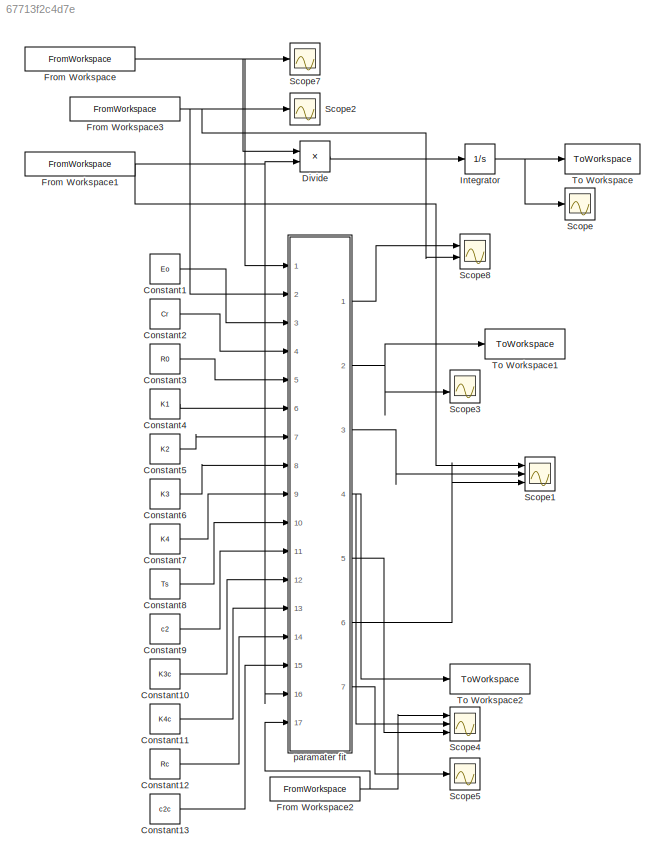
MODEL slx_67713f2c4d7e
KIND model
CONFIG AbsTol = auto
CONFIG EnableMultiTasking = off
CONFIG FixedStep = auto
CONFIG MaxStep = auto
CONFIG MinStep = auto
CONFIG RelTol = 1e-3
CONFIG SampleTimeConstraint = Unconstrained
CONFIG SolverName = VariableStepAuto
CONFIG StartTime = 0.0
CONFIG StopTime = tmax
BLOCK [Constant] Constant1
  Value = Eo
BLOCK [Constant] Constant10
  Value = K3c
BLOCK [Constant] Constant11
  Value = K4c
BLOCK [Constant] Constant12
  Value = Rc
BLOCK [Constant] Constant13
  Value = c2c
BLOCK [Constant] Constant2
  Value = Cr
BLOCK [Constant] Constant3
  Value = R0
BLOCK [Constant] Constant4
  Value = K1
BLOCK [Constant] Constant5
  Value = K2
BLOCK [Constant] Constant6
  Value = K3
BLOCK [Constant] Constant7
  Value = K4
BLOCK [Constant] Constant8
  Value = Ts
BLOCK [Constant] Constant9
  Value = c2
BLOCK [Product] Divide
  Inputs = **
  Ports = [2, 1]
BLOCK [FromWorkspace] From Workspace
  SampleTime = Ts
  VariableName = ts_ik_many_cycles
BLOCK [FromWorkspace] From Workspace1
  SampleTime = Ts
  VariableName = ts_vt_many_cycles
BLOCK [FromWorkspace] From Workspace2
  SampleTime = 1
  VariableName = ts_tk_many_cycles
BLOCK [FromWorkspace] From Workspace3
  SampleTime = Ts
  VariableName = ts_mode_many_cycles
BLOCK [Integrator] Integrator
  Ports = [1, 1]
BLOCK [Scope] Scope
  Floating = off
  NumInputPorts = 1
  Ports = [1]
  ScopeSpecificationString = Simulink.scopes.TimeScopeBlockCfg('CurrentConfiguration', extmgr.ConfigurationSet(extmgr.Configuration('Core','General UI',true),extmgr.Configuration('Core','Source UI',true),extmgr.Configuration('Sources','WiredSimulink',true,'DataLoggingVariableName','ScopeData4'),extmgr.Configuration('Visuals','Time Domain',true,'SerializedDisplays',{struct('MinYLimReal','-537127.63653','MaxYLimReal','4834148.7...<+1465ch>
BLOCK [Scope] Scope1
  Floating = off
  NumInputPorts = 3
  Ports = [3]
  ScopeSpecificationString = Simulink.scopes.TimeScopeBlockCfg('CurrentConfiguration', extmgr.ConfigurationSet(extmgr.Configuration('Core','General UI',true),extmgr.Configuration('Core','Source UI',true),extmgr.Configuration('Sources','WiredSimulink',true,'DataLoggingVariableName','voltage_vector','DataLogging',true,'DataLoggingSaveFormat','StructureWithTime','SampleTime','Ts'),extmgr.Configuration('Visuals','Time Domain',tru...<+1573ch>
BLOCK [Scope] Scope2
  Floating = off
  NumInputPorts = 1
  Ports = [1]
  ScopeSpecificationString = Simulink.scopes.TimeScopeBlockCfg('CurrentConfiguration', extmgr.ConfigurationSet(extmgr.Configuration('Core','General UI',true),extmgr.Configuration('Core','Source UI',true),extmgr.Configuration('Sources','WiredSimulink',true,'DataLoggingVariableName','ScopeData1'),extmgr.Configuration('Visuals','Time Domain',true,'SerializedDisplays',{struct('MinYLimReal','-1.125','MaxYLimReal','0.125','YLabelRe...<+1435ch>
BLOCK [Scope] Scope3
  Floating = off
  NumInputPorts = 2
  Ports = [2]
  ScopeSpecificationString = Simulink.scopes.TimeScopeBlockCfg('CurrentConfiguration', extmgr.ConfigurationSet(extmgr.Configuration('Core','General UI',true),extmgr.Configuration('Core','Source UI',true),extmgr.Configuration('Sources','WiredSimulink',true,'DataLoggingVariableName','soc_vector'),extmgr.Configuration('Visuals','Time Domain',true,'SerializedDisplays',{struct('MinYLimReal','-12.4875','MaxYLimReal','112.3875','YLa...<+1463ch>
BLOCK [Scope] Scope4
  Floating = off
  NumInputPorts = 3
  Ports = [3]
  ScopeSpecificationString = Simulink.scopes.TimeScopeBlockCfg('CurrentConfiguration', extmgr.ConfigurationSet(extmgr.Configuration('Core','General UI',true),extmgr.Configuration('Core','Source UI',true),extmgr.Configuration('Sources','WiredSimulink',true,'DataLoggingVariableName','temp_vector','DataLogging',true,'DataLoggingSaveFormat','StructureWithTime','SampleTime','Ts'),extmgr.Configuration('Visuals','Time Domain',true,'...<+1576ch>
BLOCK [Scope] Scope5
  Floating = off
  NumInputPorts = 1
  Ports = [1]
  ScopeSpecificationString = Simulink.scopes.TimeScopeBlockCfg('CurrentConfiguration', extmgr.ConfigurationSet(extmgr.Configuration('Core','General UI',true),extmgr.Configuration('Core','Source UI',true),extmgr.Configuration('Sources','WiredSimulink',true,'DataLoggingVariableName','ScopeData1'),extmgr.Configuration('Visuals','Time Domain',true,'SerializedDisplays',{struct('MinYLimReal','0.03358','MaxYLimReal','0.10006','YLabe...<+1448ch>
BLOCK [Scope] Scope7
  Floating = off
  NumInputPorts = 1
  Ports = [1]
  ScopeSpecificationString = Simulink.scopes.TimeScopeBlockCfg('CurrentConfiguration', extmgr.ConfigurationSet(extmgr.Configuration('Core','General UI',true),extmgr.Configuration('Core','Source UI',true),extmgr.Configuration('Sources','WiredSimulink',true,'DataLoggingVariableName','current','DataLogging',true,'DataLoggingSaveFormat','Array','SampleTime','Ts'),extmgr.Configuration('Visuals','Time Domain',true,'SerializedDispla...<+1512ch>
BLOCK [Scope] Scope8
  Floating = off
  NumInputPorts = 2
  Ports = [2]
  ScopeSpecificationString = Simulink.scopes.TimeScopeBlockCfg('CurrentConfiguration', extmgr.ConfigurationSet(extmgr.Configuration('Core','General UI',true),extmgr.Configuration('Core','Source UI',true),extmgr.Configuration('Sources','WiredSimulink',true,'DataLoggingVariableName','gamma_est','DataLogging',true,'DataLoggingSaveFormat','StructureWithTime','SampleTime','Ts'),extmgr.Configuration('Visuals','Time Domain',true,'Se...<+1548ch>
BLOCK [ToWorkspace] To Workspace
  FixptAsFi = on
  MaxDataPoints = inf
  Ports = [1]
  SampleTime = Ts
  VariableName = cum_energy
BLOCK [ToWorkspace] To Workspace1
  FixptAsFi = on
  MaxDataPoints = inf
  Ports = [1]
  SampleTime = Ts
  VariableName = soc
BLOCK [ToWorkspace] To Workspace2
  FixptAsFi = on
  MaxDataPoints = inf
  Ports = [1]
  SampleTime = Ts
  VariableName = temperature
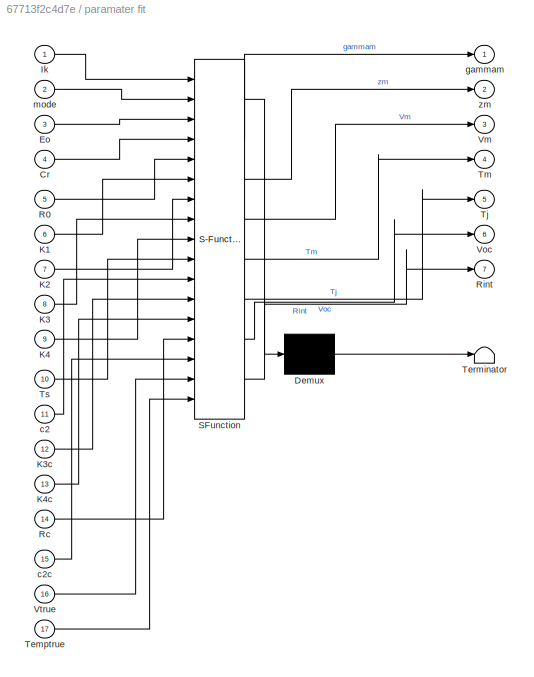
BLOCK [SubSystem] paramater fit
  ErrorFcn = Stateflow.Translate.translate
  PermitHierarchicalResolution = ExplicitOnly
  Ports = [17, 7]
  RequestExecContextInheritance = off
  SFBlockType = MATLAB Function
  TreatAsAtomicUnit = on
BLOCK [Demux] paramater fit/ Demux 
  Outputs = 1
  Ports = [1, 1]
BLOCK [S-Function] paramater fit/ SFunction 
  EnableBusSupport = on
  FunctionName = sf_sfun
  PortCounts = [17 8]
  Ports = [17, 8]
  SFcnIsStateOwnerBlock = off
  SFunctionDeploymentMode = off
  Tag = Stateflow S-Function 1
BLOCK [Terminator] paramater fit/ Terminator 
BLOCK [Inport] paramater fit/Cr
  Port = 4
BLOCK [Inport] paramater fit/Eo
  Port = 3
BLOCK [Inport] paramater fit/Ik
BLOCK [Inport] paramater fit/K1
  Port = 6
BLOCK [Inport] paramater fit/K2
  Port = 7
BLOCK [Inport] paramater fit/K3
  Port = 8
BLOCK [Inport] paramater fit/K3c
  Port = 12
BLOCK [Inport] paramater fit/K4
  Port = 9
BLOCK [Inport] paramater fit/K4c
  Port = 13
BLOCK [Inport] paramater fit/R0
  Port = 5
BLOCK [Inport] paramater fit/Rc
  Port = 14
BLOCK [Outport] paramater fit/Rint
  Port = 7
BLOCK [Inport] paramater fit/Temptrue
  Port = 17
BLOCK [Outport] paramater fit/Tj
  Port = 5
BLOCK [Outport] paramater fit/Tm
  Port = 4
BLOCK [Inport] paramater fit/Ts
  Port = 10
BLOCK [Outport] paramater fit/Vm
  Port = 3
BLOCK [Outport] paramater fit/Voc
  Port = 6
BLOCK [Inport] paramater fit/Vtrue
  Port = 16
BLOCK [Inport] paramater fit/c2
  Port = 11
BLOCK [Inport] paramater fit/c2c
  Port = 15
BLOCK [Outport] paramater fit/gammam
BLOCK [Inport] paramater fit/mode
  Port = 2
BLOCK [Outport] paramater fit/zm
  Port = 2
LINE Constant10:1 -> paramater fit:12
LINE Constant11:1 -> paramater fit:13
LINE Constant12:1 -> paramater fit:14
LINE Constant13:1 -> paramater fit:15
LINE Constant1:1 -> paramater fit:3
LINE Constant2:1 -> paramater fit:4
LINE Constant3:1 -> paramater fit:5
LINE Constant4:1 -> paramater fit:6
LINE Constant5:1 -> paramater fit:7
LINE Constant6:1 -> paramater fit:8
LINE Constant7:1 -> paramater fit:9
LINE Constant8:1 -> paramater fit:10
LINE Constant9:1 -> paramater fit:11
LINE Divide:1 -> Integrator:1
NET From Workspace1:1 -> Divide:2, Scope1:1, paramater fit:16
NET From Workspace2:1 -> Scope4:1, paramater fit:17
NET From Workspace3:1 -> Scope2:1, Scope8:2, paramater fit:2
NET From Workspace:1 -> Divide:1, Scope7:1, paramater fit:1
NET Integrator:1 -> Scope:1, To Workspace:1
LINE paramater fit:1 -> Scope8:1
NET paramater fit:2 -> Scope3:2, To Workspace1:1
LINE paramater fit:3 -> Scope1:2
NET paramater fit:4 -> Scope4:2, To Workspace2:1
LINE paramater fit:5 -> Scope4:3
LINE paramater fit:6 -> Scope1:3
LINE paramater fit:7 -> Scope5:1
note: NET lines group one-source signal fan-out (src -> all destinations, sorted); 1:1 wires keep LINE
CHART paramater fit states=1 transitions=1
  STATE_LABEL 'eML_blk_kernel()'
  STATE_LABEL 'SCRIPT:\nfunction [gammam,zm,Vm, Tm,Tj, Voc,Rint]= fcn(Ik,mode,Eo,Cr,R0,K1,K2,K3,K4,Ts,c2,K3c,K4c,Rc,c2c,Vtrue,Temptrue)\n\n\n\npersistent zk Vk Tk gammak\n\n\n\nz0=99.9;\nTamb=23;\nTj=23;\nfiltro_gamma=0.999;\nCr=2.6;\n\n\n%L=1*[-0.6160    0.1816    0.6066];\n%L=[-0.0598    0.3907    0.7142];\n%L=[-0.0732    0.8348    0.6290];\n%L=[-1.3438    5.4291    1.8409];\n%L=[-0.5419    3.0073    1.2901];\n%L=[-0.0281    2.010...<+2221ch>'
CHART  states=0 transitions=0
